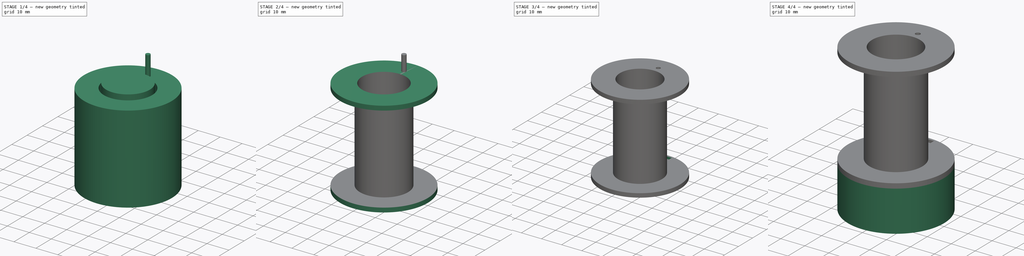
[diagram: build sequence overview — one tinted view per stage of 4, left to right]
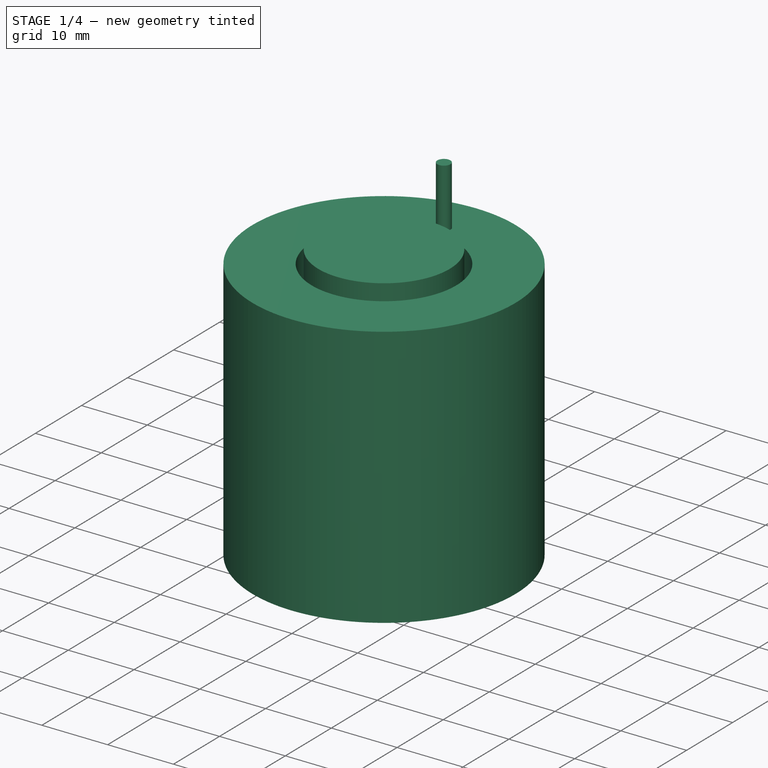
[diagram: stage 1 of 4 — iso view after this stage's code; geometry added in this stage tinted green]
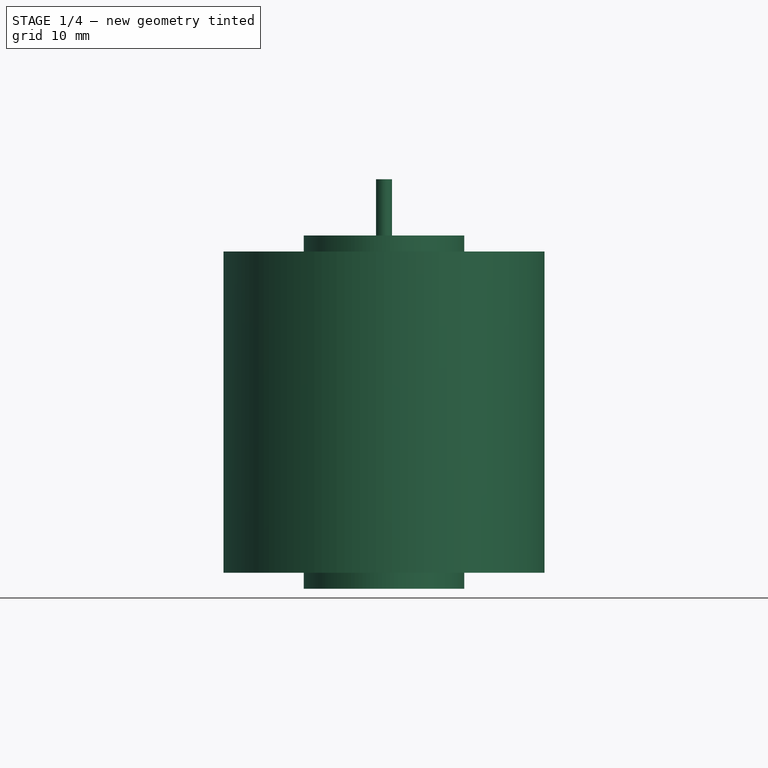
[diagram: stage 1 of 4 — front view after this stage's code; geometry added in this stage tinted green]
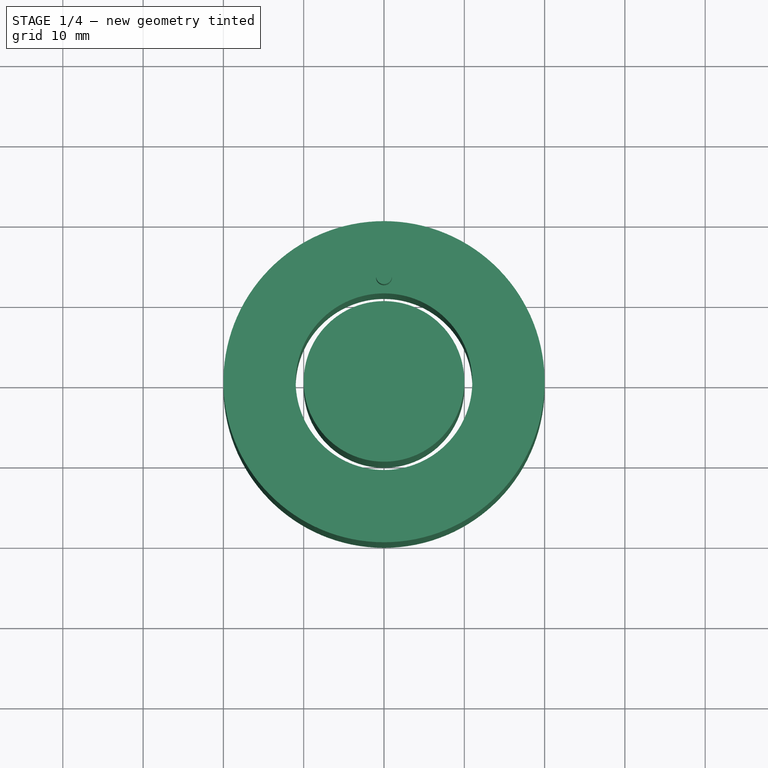
[diagram: stage 1 of 4 — top view after this stage's code; geometry added in this stage tinted green]
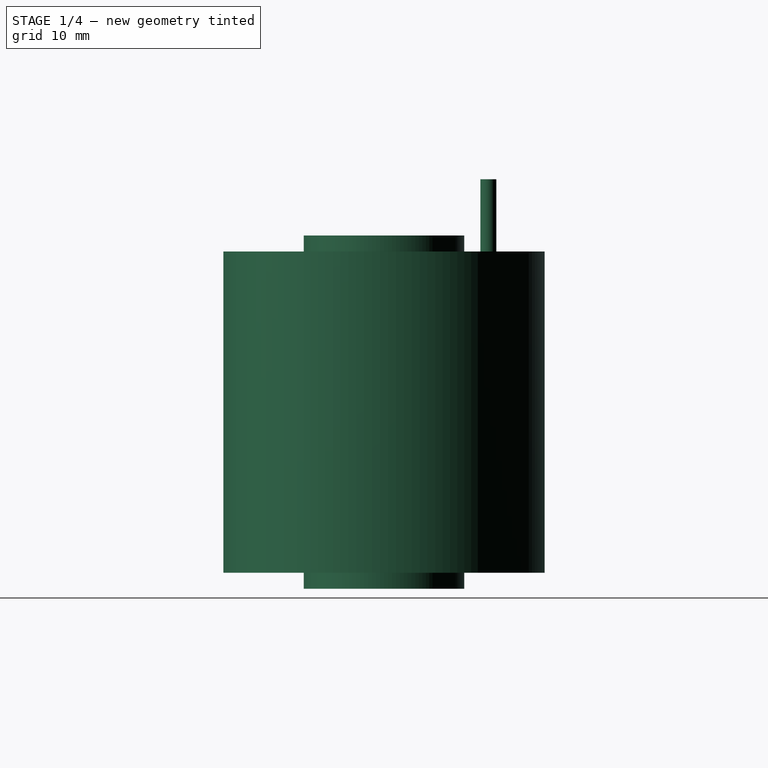
[diagram: stage 1 of 4 — right view after this stage's code; geometry added in this stage tinted green]
FCSTD DOCUMENT  (FreeCAD 0.14R3702 (Git))
Label: bobina
License: All rights reserved
LicenseURL: http://en.wikipedia.org/wiki/All_rights_reserved
objects: Part::Cylinder×5, Part::Cut×5, Sketcher::SketchObject×2, PartDesign::Revolution×1, Part::Part2DObjectPython×1, Part::Extrusion×1
note: 16 computed .brp shape members not serialized (recipe doc carries the construction recipe); baked Part::Feature solids carry a one-line shape summary decoded from their .brp

FEATURE [Sketcher::SketchObject] Sketch
  Placement = pos=(0,0,0) rot=(0.57735,0.57735,0.57735;2.0944rad)
  sketch-geometry (4):
    g0: LineSegment StartX=20 StartY=20 StartZ=0 EndX=11 EndY=20 EndZ=0
    g1: LineSegment StartX=11 StartY=20 StartZ=0 EndX=11 EndY=-20 EndZ=0
    g2: LineSegment StartX=11 StartY=-20 StartZ=0 EndX=20 EndY=-20 EndZ=0
    g3: LineSegment StartX=20 StartY=-20 StartZ=0 EndX=20 EndY=20 EndZ=0
  constraints (12):
    c: Coincident(g0,g1)
    c: Coincident(g1,g2)
    c: Coincident(g2,g3)
    c: Coincident(g3,g0)
    c: Horizontal(g0)
    c: Horizontal(g2)
    c: Vertical(g1)
    c: Vertical(g3)
    c: Symmetric(g0,g2,g-1)
    c: DistanceY(g3) = 40
    c: DistanceX(g0) = -9
    c: DistanceX(g-1,g2) = 20
FEATURE [PartDesign::Revolution] Revolution  label="cilindro-pequeño"
  Angle = 360
  Axis = (0,0,1)
  Base = (0,0,0)
  Placement = pos=(0,0,0) rot=(0.57735,0.57735,0.57735;2.0944rad)
  ReferenceAxis = -> Sketch [V_Axis]
  Reversed = true
  Sketch = -> Sketch
FEATURE [Part::Cylinder] Cylinder001  label="agujero-interior"
  Angle = 360
  Height = 44
  Placement = pos=(0,0,-22) rot=(0,0,1;0rad)
  Radius = 10
FEATURE [Part::Cylinder] Cylinder002  label="agujero-hilo"
  Angle = 360
  Height = 10
  Placement = pos=(0,13,19) rot=(0,0,1;0rad)
  Radius = 1
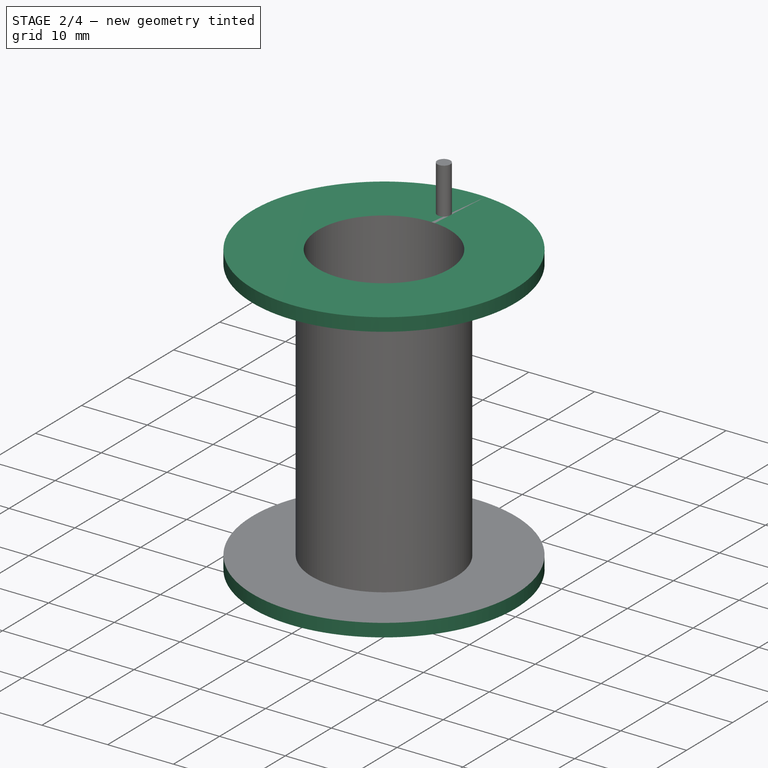
[diagram: stage 2 of 4 — iso view after this stage's code; geometry added in this stage tinted green]
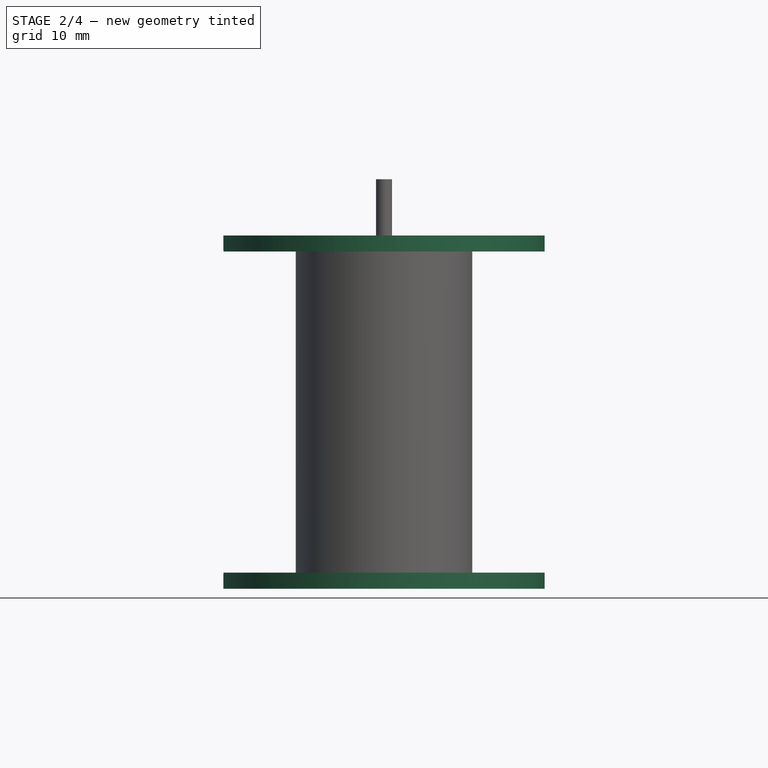
[diagram: stage 2 of 4 — front view after this stage's code; geometry added in this stage tinted green]
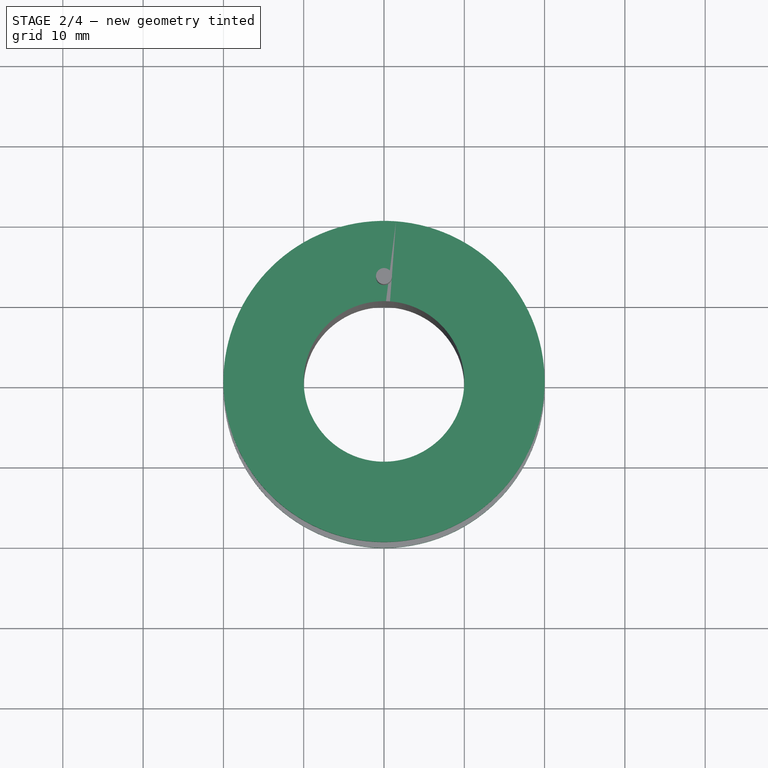
[diagram: stage 2 of 4 — top view after this stage's code; geometry added in this stage tinted green]
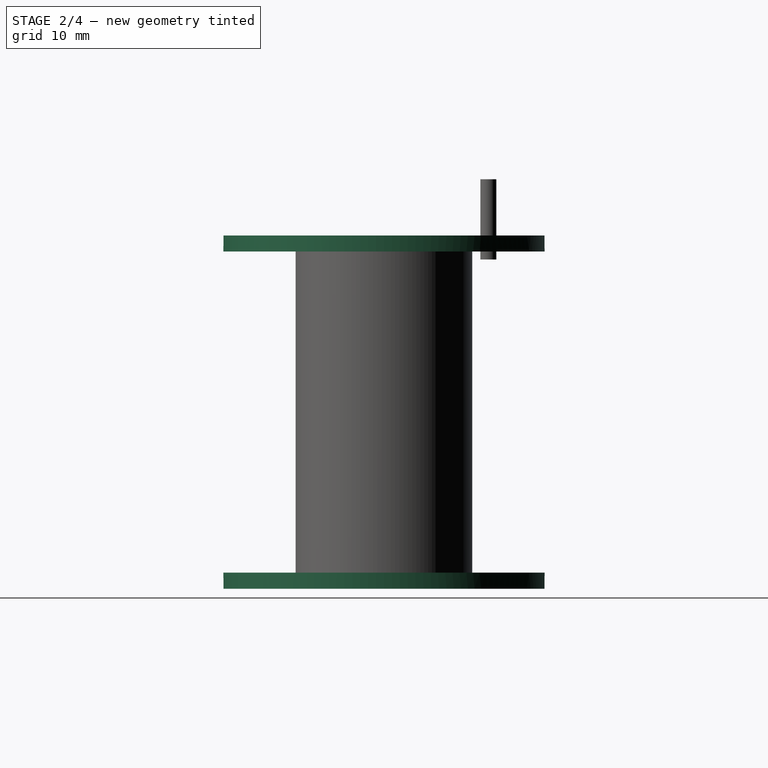
[diagram: stage 2 of 4 — right view after this stage's code; geometry added in this stage tinted green]
FEATURE [Part::Cylinder] Cylinder  label="cilindro-grande"
  Angle = 360
  Height = 44
  Placement = pos=(0,0,-22) rot=(0,0,1;0rad)
  Radius = 20
FEATURE [Part::Cut] Cut
  Base = -> Cylinder
  Tool = -> Revolution
FEATURE [Part::Cut] Cut001
  Base = -> Cut
  Tool = -> Cylinder001
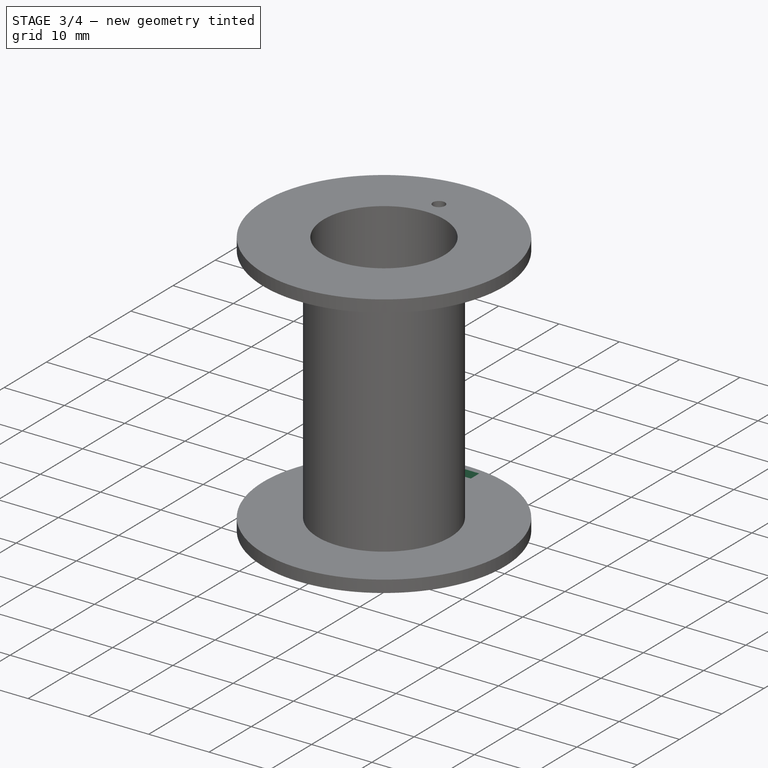
[diagram: stage 3 of 4 — iso view after this stage's code; geometry added in this stage tinted green]
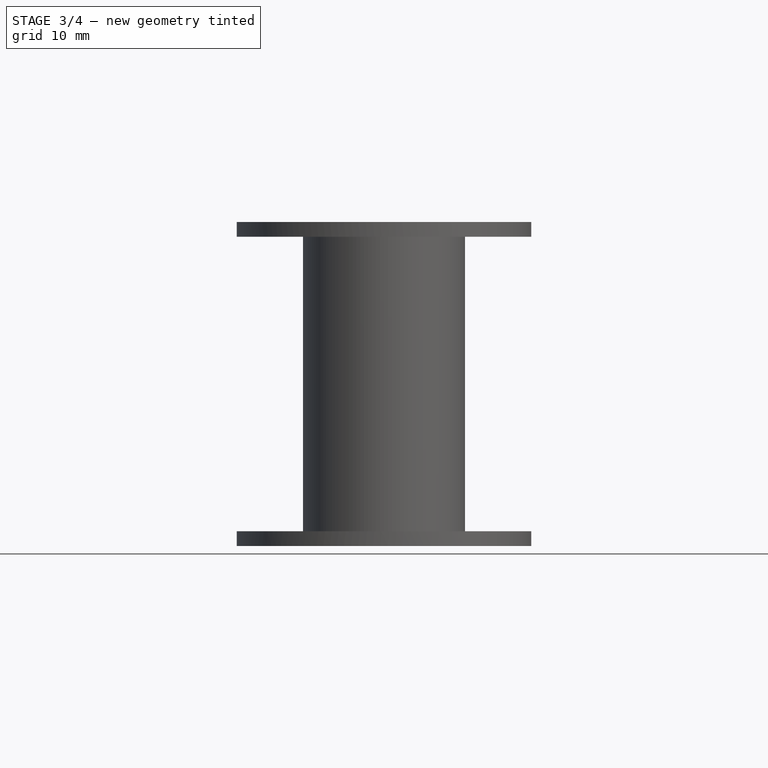
[diagram: stage 3 of 4 — front view after this stage's code; geometry added in this stage tinted green]
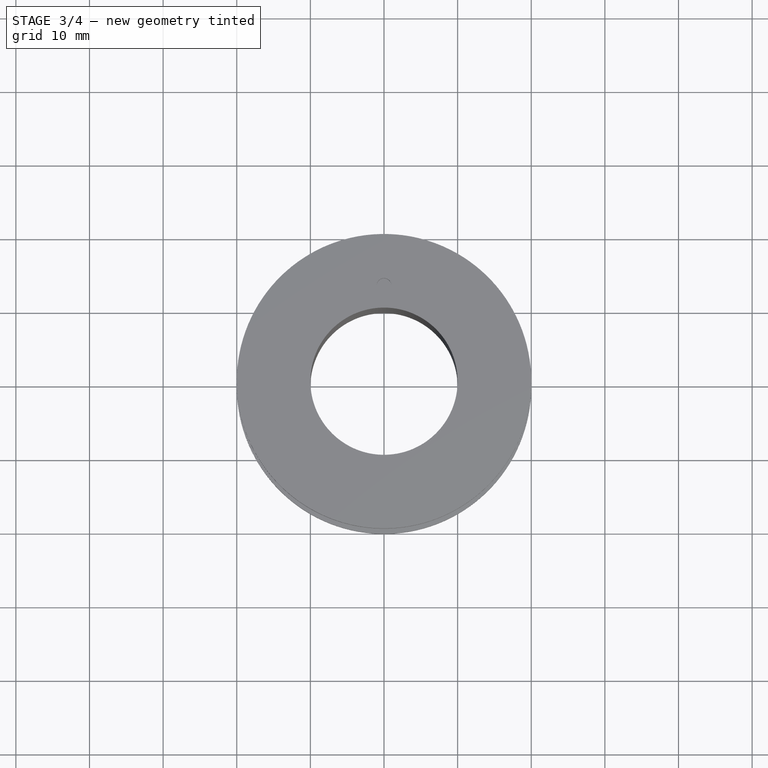
[diagram: stage 3 of 4 — top view after this stage's code; geometry added in this stage tinted green]
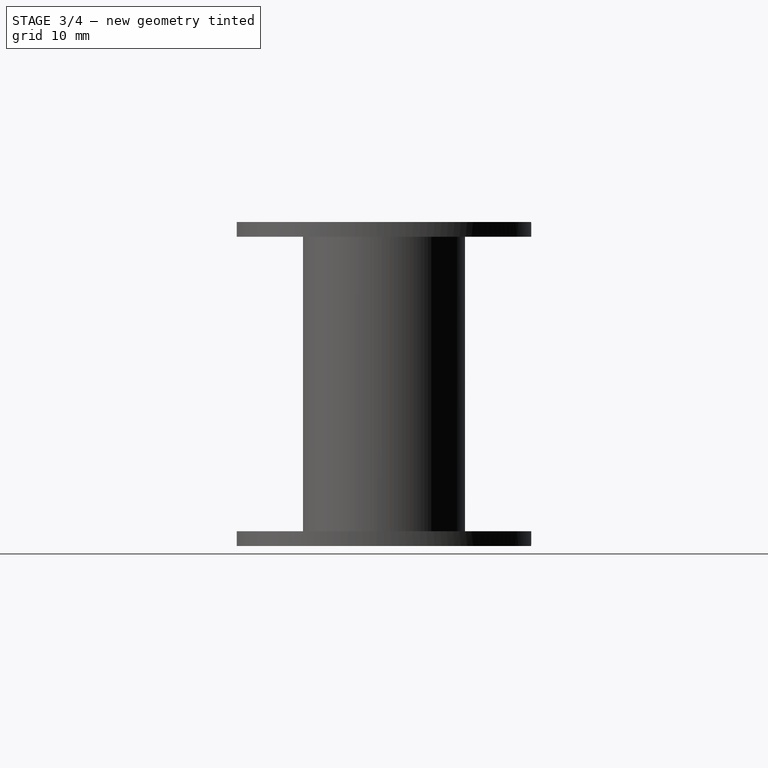
[diagram: stage 3 of 4 — right view after this stage's code; geometry added in this stage tinted green]
FEATURE [Part::Cut] Cut002  label="Cut005"
  Base = -> Cut001
  Tool = -> Cylinder002
FEATURE [Sketcher::SketchObject] Sketch001
  Placement = pos=(0,0,-22) rot=(1,0,0;3.14159rad)
  Support = -> Cut002 [Face8]
  sketch-geometry (4):
    g0: LineSegment StartX=-2.50394 StartY=-17.0062 StartZ=0 EndX=2.49606 EndY=-17.0062 EndZ=0
    g1: LineSegment StartX=2.49606 StartY=-17.0062 StartZ=0 EndX=2.49606 EndY=-19.0062 EndZ=0
    g2: LineSegment StartX=2.49606 StartY=-19.0062 StartZ=0 EndX=-2.50394 EndY=-19.0062 EndZ=0
    g3: LineSegment StartX=-2.50394 StartY=-19.0062 StartZ=0 EndX=-2.50394 EndY=-17.0062 EndZ=0
  constraints (10):
    c: Coincident(g0,g1)
    c: Coincident(g1,g2)
    c: Coincident(g2,g3)
    c: Coincident(g3,g0)
    c: Horizontal(g0)
    c: Horizontal(g2)
    c: Vertical(g1)
    c: Vertical(g3)
    c: DistanceY(g3) = 2
    c: DistanceX(g0) = 5
FEATURE [Part::Part2DObjectPython] DWire  # Draft 2D object (typed FeaturePython)
  Base = -> Sketch001
  ChamferSize = 0
  Closed = true
  End = (-2.46871,-16.9854,-22)
  FilletRadius = 0
  MakeFace = true
  Points = (4) [(-2.46871,-18.9854,-22),(2.53129,-18.9854,-22),(2.53129,-16.9854,-22),(-2.46871,-16.9854,-22)]
  Start = (-2.46871,-18.9854,-22)
FEATURE [Part::Extrusion] Extrude  label="hueco-cables-hall"
  Base = -> DWire
  Dir = (0,0,5)
  Solid = false
FEATURE [Part::Cut] Cut004  label="bobina"
  Base = -> Cut002
  Tool = -> Extrude
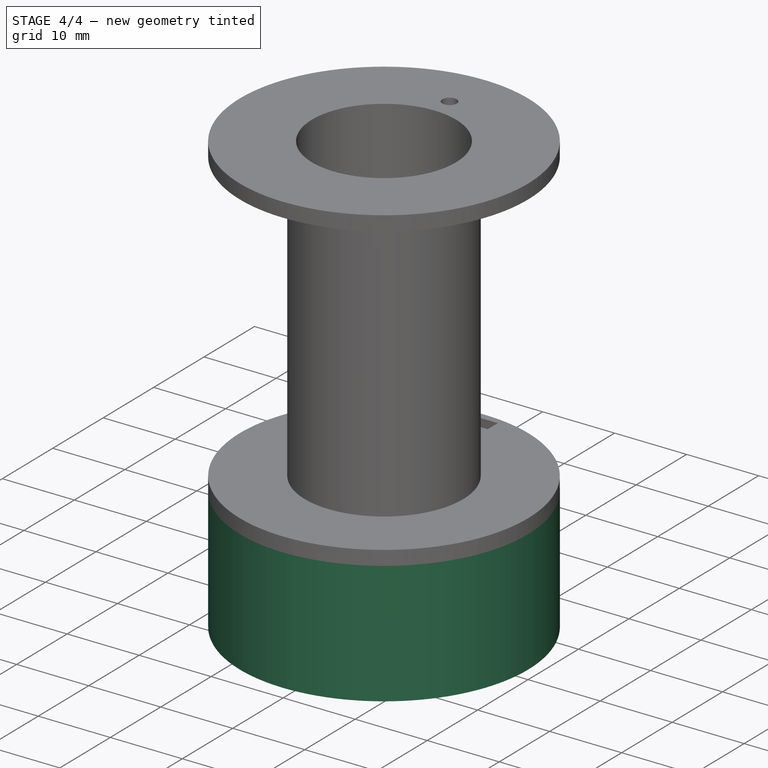
[diagram: stage 4 of 4 — iso view after this stage's code; geometry added in this stage tinted green]
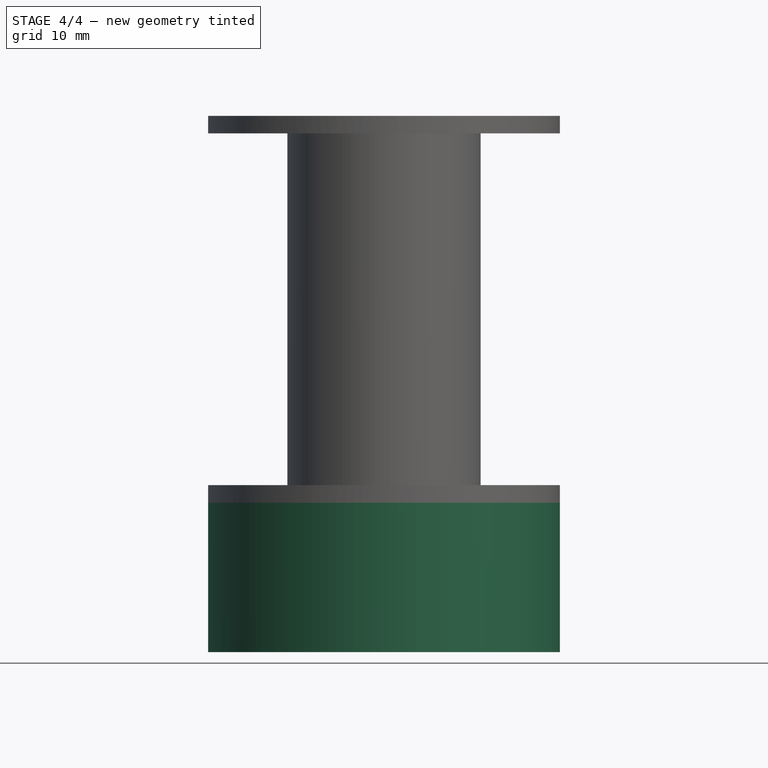
[diagram: stage 4 of 4 — front view after this stage's code; geometry added in this stage tinted green]
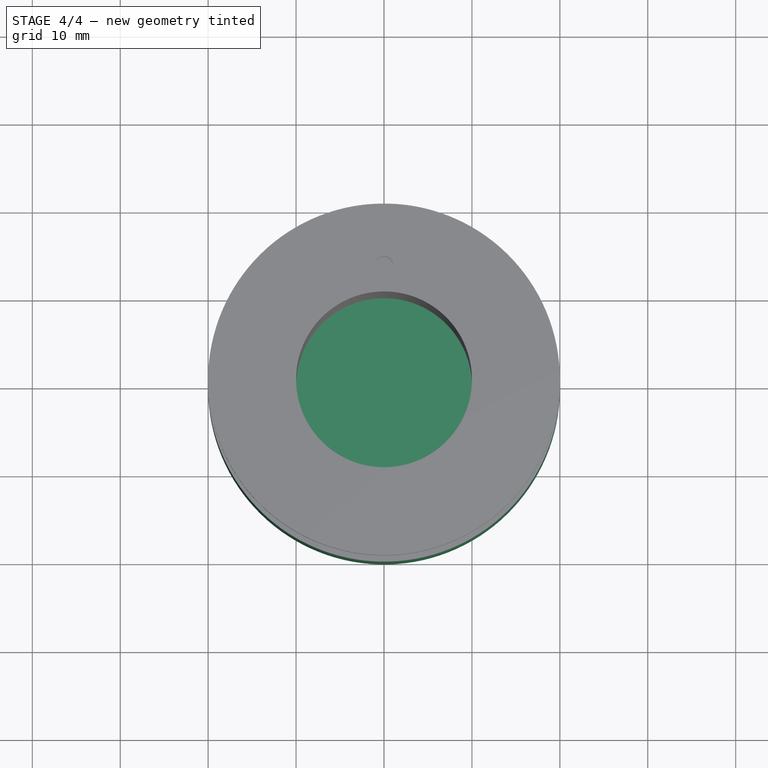
[diagram: stage 4 of 4 — top view after this stage's code; geometry added in this stage tinted green]
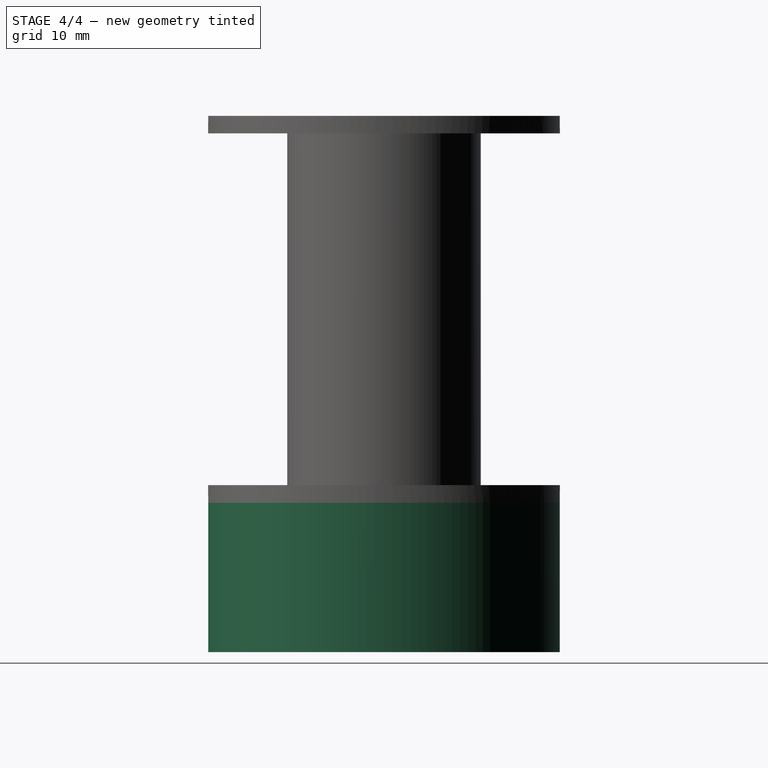
[diagram: stage 4 of 4 — right view after this stage's code; geometry added in this stage tinted green]
FEATURE [Part::Cylinder] Cylinder003  label="Cylinder"
  Angle = 360
  Height = 17
  Radius = 20
FEATURE [Part::Cylinder] Cylinder004  label="Cylinder001"
  Angle = 360
  Height = 15
  Placement = pos=(0,0,3) rot=(0,0,1;0rad)
  Radius = 19
FEATURE [Part::Cut] Cut003  label="tapon"
  Base = -> Cylinder003
  Placement = pos=(0,0,-39) rot=(0,0,1;0rad)
  Tool = -> Cylinder004
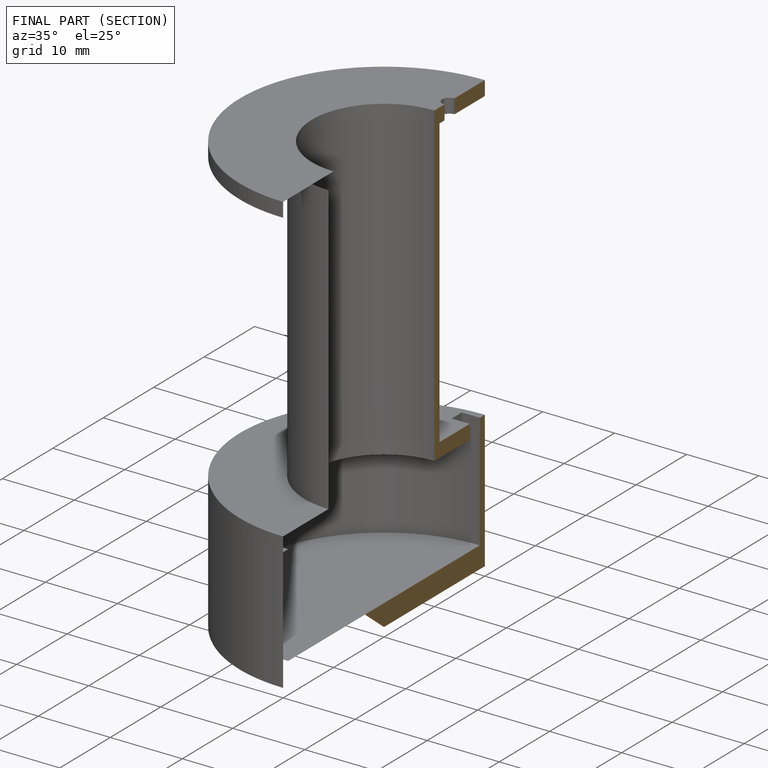
[diagram: finished part — half-section view (interior)]
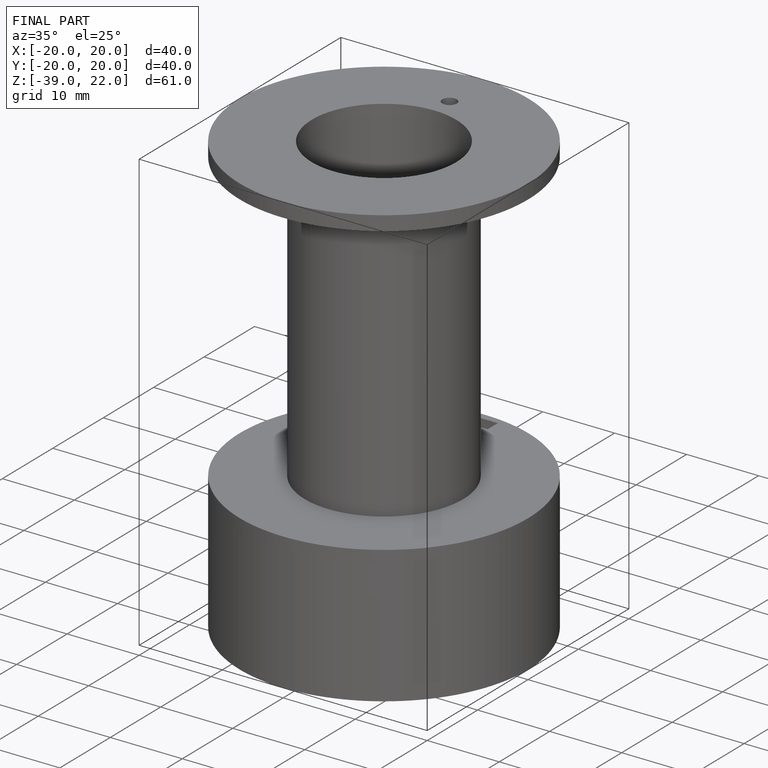
[diagram: finished part — iso view with bounding-box wireframe]
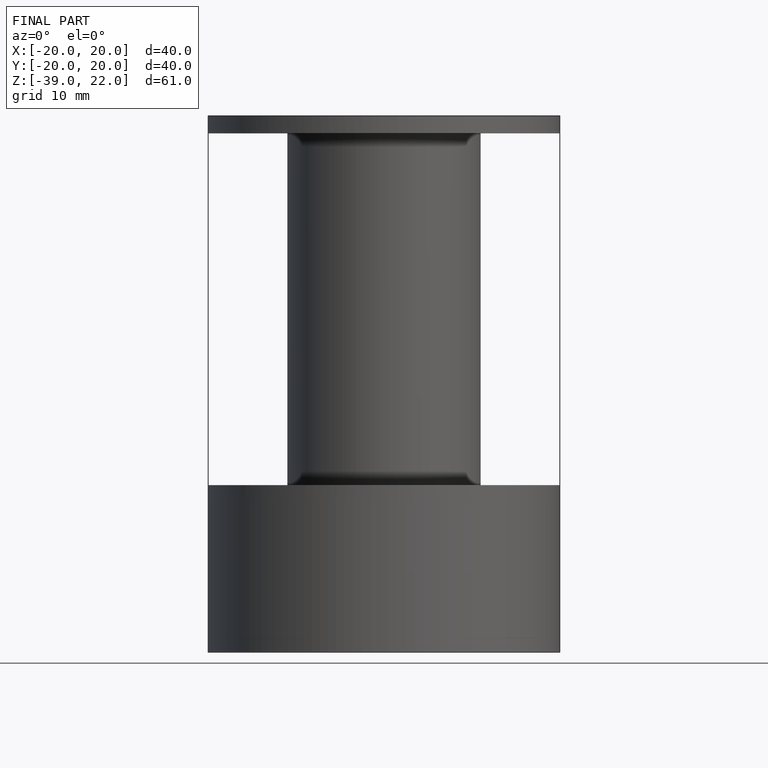
[diagram: finished part — front view with bounding-box wireframe]
